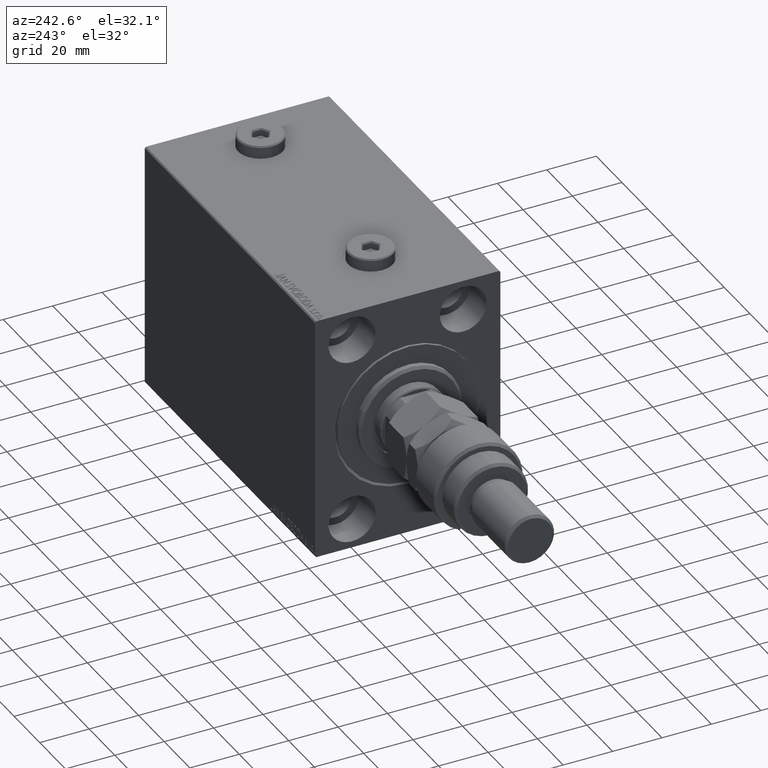
[diagram: clean part render]
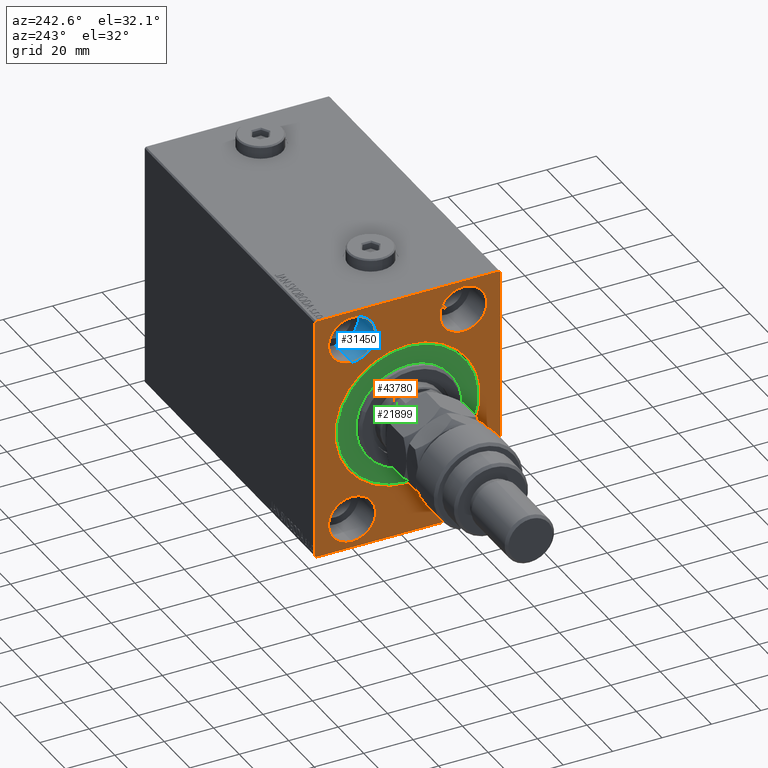
[diagram: same view with three faces highlighted in distinct colors, each labeled with its STEP entity id]
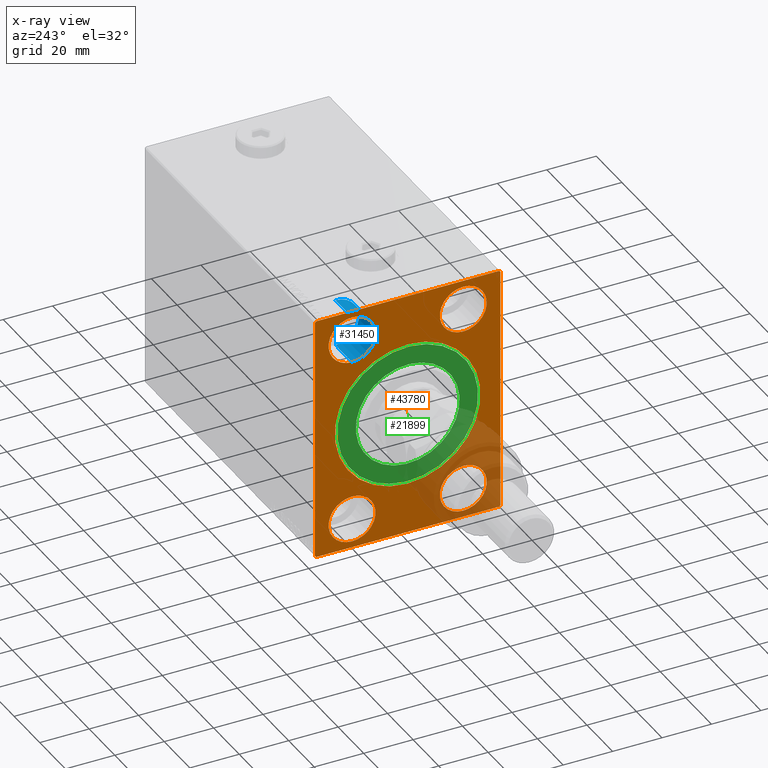
[diagram: x-ray of the same camera — body ghosted, the three highlighted faces saturated]
A machine part, auxiliary view with three faces highlighted in distinct colors.
The next image is the same camera in x-ray (body ghosted, the three faces saturated) — at least one of them is partly hidden behind the body in this view.
Their STEP definitions:

[orange] entity #43780 — the highlighted planar face has unit normal (1, 0, 0).
#85 = CARTESIAN_POINT ( 'NONE',  ( 0.000000000000000000, 0.000000000000000000, 29.50000000000002842 ) ) ;
#291 = CARTESIAN_POINT ( 'NONE',  ( 0.000000000000000000, 22.50000000000000355, 37.99999999999999289 ) ) ;
#345 = DIRECTION ( 'NONE',  ( 0.000000000000000000, -1.000000000000000000, -1.850371707708594316E-16 ) ) ;
#507 = CARTESIAN_POINT ( 'NONE',  ( 0.000000000000000000, -22.50000000000000711, -37.99999999999999289 ) ) ;
#653 = CARTESIAN_POINT ( 'NONE',  ( 0.000000000000000000, 36.99999999999997868, -50.00000000000000000 ) ) ;
#1312 = ORIENTED_EDGE ( 'NONE', *, *, #34344, .F. ) ;
#1766 = CARTESIAN_POINT ( 'NONE',  ( 0.000000000000000000, -22.49999999999999645, 37.99999999999999289 ) ) ;
#2259 = ORIENTED_EDGE ( 'NONE', *, *, #18943, .F. ) ;
#2311 = ORIENTED_EDGE ( 'NONE', *, *, #21625, .F. ) ;
#3371 = DIRECTION ( 'NONE',  ( 0.000000000000000000, 0.000000000000000000, 1.000000000000000000 ) ) ;
#3517 = EDGE_LOOP ( 'NONE', ( #2311, #9301, #17945, #40535, #35314, #23698, #42245, #33719 ) ) ;
#3784 = VECTOR ( 'NONE', #25185, 1000.000000000000114 ) ;
#4656 = ORIENTED_EDGE ( 'NONE', *, *, #21406, .F. ) ;
#4757 = CARTESIAN_POINT ( 'NONE',  ( 0.000000000000000000, -37.00000000000003553, -50.00000000000000711 ) ) ;
#5307 = VECTOR ( 'NONE', #8539, 1000.000000000000000 ) ;
#5553 = VERTEX_POINT ( 'NONE', #45293 ) ;
#5954 = FACE_OUTER_BOUND ( 'NONE', #3517, .T. ) ;
#6118 = LINE ( 'NONE', #20987, #40617 ) ;
#6296 = CARTESIAN_POINT ( 'NONE',  ( 0.000000000000000000, -22.50000000000000711, -37.99999999999999289 ) ) ;
#7179 = VERTEX_POINT ( 'NONE', #31281 ) ;
#7282 = CARTESIAN_POINT ( 'NONE',  ( 0.000000000000000000, 0.000000000000000000, 0.000000000000000000 ) ) ;
#7519 = VERTEX_POINT ( 'NONE', #32174 ) ;
#7895 = EDGE_LOOP ( 'NONE', ( #18840, #34393 ) ) ;
#7926 = EDGE_CURVE ( 'NONE', #35188, #34991, #16171, .T. ) ;
#7934 = LINE ( 'NONE', #4757, #25852 ) ;
#8331 = EDGE_CURVE ( 'NONE', #42750, #48070, #45142, .T. ) ;
#8539 = DIRECTION ( 'NONE',  ( 0.000000000000000000, 1.000000000000000000, 9.251858538542970348E-17 ) ) ;
#8741 = VECTOR ( 'NONE', #32708, 1000.000000000000000 ) ;
#8921 = EDGE_CURVE ( 'NONE', #7179, #13741, #34828, .T. ) ;
#9199 = VERTEX_POINT ( 'NONE', #32266 ) ;
#9301 = ORIENTED_EDGE ( 'NONE', *, *, #34521, .T. ) ;
#9378 = DIRECTION ( 'NONE',  ( 1.000000000000000000, 0.000000000000000000, 0.000000000000000000 ) ) ;
#9727 = CARTESIAN_POINT ( 'NONE',  ( 0.000000000000000000, -22.49999999999999645, 28.49999999999998934 ) ) ;
#10321 = AXIS2_PLACEMENT_3D ( 'NONE', #23719, #33963, #19129 ) ;
#10535 = EDGE_CURVE ( 'NONE', #10588, #22934, #22526, .T. ) ;
#10588 = VERTEX_POINT ( 'NONE', #31910 ) ;
#11943 = AXIS2_PLACEMENT_3D ( 'NONE', #44504, #30365, #3371 ) ;
#13271 = EDGE_CURVE ( 'NONE', #38362, #7519, #39712, .T. ) ;
#13465 = DIRECTION ( 'NONE',  ( 0.000000000000000000, -1.387778780781445676E-16, 1.000000000000000000 ) ) ;
#13599 = VERTEX_POINT ( 'NONE', #39874 ) ;
#13741 = VERTEX_POINT ( 'NONE', #653 ) ;
#13883 = VERTEX_POINT ( 'NONE', #28851 ) ;
#13972 = ORIENTED_EDGE ( 'NONE', *, *, #36246, .F. ) ;
#14689 = VECTOR ( 'NONE', #345, 1000.000000000000000 ) ;
#14905 = ORIENTED_EDGE ( 'NONE', *, *, #13271, .F. ) ;
#16171 = CIRCLE ( 'NONE', #43355, 29.50000000000002842 ) ;
#16633 = DIRECTION ( 'NONE',  ( -1.000000000000000000, 0.000000000000000000, 0.000000000000000000 ) ) ;
#17401 = CIRCLE ( 'NONE', #11943, 9.500000000000001776 ) ;
#17447 = EDGE_CURVE ( 'NONE', #34991, #35188, #39023, .T. ) ;
#17466 = DIRECTION ( 'NONE',  ( 0.000000000000000000, 0.000000000000000000, 1.000000000000000000 ) ) ;
#17752 = DIRECTION ( 'NONE',  ( 0.000000000000000000, 0.000000000000000000, 1.000000000000000000 ) ) ;
#17945 = ORIENTED_EDGE ( 'NONE', *, *, #8331, .F. ) ;
#18177 = EDGE_CURVE ( 'NONE', #5553, #13883, #6118, .T. ) ;
#18564 = EDGE_CURVE ( 'NONE', #7179, #30336, #7934, .T. ) ;
#18840 = ORIENTED_EDGE ( 'NONE', *, *, #17447, .T. ) ;
#18943 = EDGE_CURVE ( 'NONE', #22934, #10588, #38322, .T. ) ;
#19047 = DIRECTION ( 'NONE',  ( -1.000000000000000000, 0.000000000000000000, 0.000000000000000000 ) ) ;
#19129 = DIRECTION ( 'NONE',  ( 0.000000000000000000, 0.000000000000000000, 1.000000000000000000 ) ) ;
#19153 = ORIENTED_EDGE ( 'NONE', *, *, #40517, .F. ) ;
#19777 = CARTESIAN_POINT ( 'NONE',  ( 0.000000000000000000, -22.49999999999999645, 37.99999999999999289 ) ) ;
#20095 = AXIS2_PLACEMENT_3D ( 'NONE', #35713, #40088, #17466 ) ;
#20886 = DIRECTION ( 'NONE',  ( 1.000000000000000000, 0.000000000000000000, 0.000000000000000000 ) ) ;
#20987 = CARTESIAN_POINT ( 'NONE',  ( 0.000000000000000000, 37.50000000000000711, -50.00000000000000000 ) ) ;
#21020 = EDGE_LOOP ( 'NONE', ( #13972, #1312 ) ) ;
#21163 = DIRECTION ( 'NONE',  ( -1.000000000000000000, 0.000000000000000000, 0.000000000000000000 ) ) ;
#21199 = VECTOR ( 'NONE', #44385, 1000.000000000000000 ) ;
#21406 = EDGE_CURVE ( 'NONE', #13599, #9199, #31300, .T. ) ;
#21625 = EDGE_CURVE ( 'NONE', #33919, #30336, #44623, .T. ) ;
#21703 = EDGE_CURVE ( 'NONE', #42750, #13883, #33175, .T. ) ;
#21829 = CARTESIAN_POINT ( 'NONE',  ( 0.000000000000000000, 36.99999999999996447, 50.00000000000000711 ) ) ;
#22138 = DIRECTION ( 'NONE',  ( 0.000000000000000000, 0.000000000000000000, -1.000000000000000000 ) ) ;
#22202 = DIRECTION ( 'NONE',  ( 0.000000000000000000, 0.000000000000000000, 1.000000000000000000 ) ) ;
#22526 = CIRCLE ( 'NONE', #35722, 9.500000000000001776 ) ;
#22550 = DIRECTION ( 'NONE',  ( -0.000000000000000000, -0.7071067811865474617, 0.7071067811865474617 ) ) ;
#22703 = EDGE_LOOP ( 'NONE', ( #32225, #2259 ) ) ;
#22934 = VERTEX_POINT ( 'NONE', #9727 ) ;
#23141 = VECTOR ( 'NONE', #27441, 1000.000000000000114 ) ;
#23698 = ORIENTED_EDGE ( 'NONE', *, *, #37603, .T. ) ;
#23719 = CARTESIAN_POINT ( 'NONE',  ( 0.000000000000000000, 22.49999999999999645, -37.99999999999999289 ) ) ;
#23764 = EDGE_CURVE ( 'NONE', #9199, #13599, #17401, .T. ) ;
#24253 = AXIS2_PLACEMENT_3D ( 'NONE', #39386, #20886, #43267 ) ;
#24352 = CARTESIAN_POINT ( 'NONE',  ( 0.000000000000000000, -37.50000000000000711, -50.00000000000000711 ) ) ;
#24789 = VERTEX_POINT ( 'NONE', #46921 ) ;
#24809 = AXIS2_PLACEMENT_3D ( 'NONE', #28355, #9378, #47115 ) ;
#25185 = DIRECTION ( 'NONE',  ( 0.000000000000000000, -0.7071067811865474617, -0.7071067811865474617 ) ) ;
#25852 = VECTOR ( 'NONE', #22550, 1000.000000000000114 ) ;
#26634 = CARTESIAN_POINT ( 'NONE',  ( 0.000000000000000000, 37.49999999999999289, 50.00000000000000711 ) ) ;
#26640 = EDGE_LOOP ( 'NONE', ( #14905, #19153 ) ) ;
#26960 = LINE ( 'NONE', #38629, #23141 ) ;
#27276 = DIRECTION ( 'NONE',  ( 0.000000000000000000, 0.000000000000000000, 1.000000000000000000 ) ) ;
#27441 = DIRECTION ( 'NONE',  ( -0.000000000000000000, 0.7071067811865474617, 0.7071067811865474617 ) ) ;
#27875 = FACE_BOUND ( 'NONE', #21020, .T. ) ;
#28355 = CARTESIAN_POINT ( 'NONE',  ( 0.000000000000000000, 0.000000000000000000, 0.000000000000000000 ) ) ;
#28851 = CARTESIAN_POINT ( 'NONE',  ( 0.000000000000000000, 37.49999999999999289, 49.49999999999997158 ) ) ;
#29286 = CARTESIAN_POINT ( 'NONE',  ( 0.000000000000000000, -37.50000000000000711, 49.99999999999999289 ) ) ;
#29332 = CIRCLE ( 'NONE', #43298, 9.500000000000001776 ) ;
#29527 = CARTESIAN_POINT ( 'NONE',  ( 0.000000000000000000, 36.99999999999996447, 50.00000000000000711 ) ) ;
#29669 = DIRECTION ( 'NONE',  ( 1.000000000000000000, 0.000000000000000000, 0.000000000000000000 ) ) ;
#30336 = VERTEX_POINT ( 'NONE', #42676 ) ;
#30365 = DIRECTION ( 'NONE',  ( -1.000000000000000000, 0.000000000000000000, 0.000000000000000000 ) ) ;
#30438 = DIRECTION ( 'NONE',  ( -1.000000000000000000, 0.000000000000000000, 0.000000000000000000 ) ) ;
#31281 = CARTESIAN_POINT ( 'NONE',  ( 0.000000000000000000, -37.00000000000003553, -50.00000000000000711 ) ) ;
#31300 = CIRCLE ( 'NONE', #10321, 9.500000000000001776 ) ;
#31460 = DIRECTION ( 'NONE',  ( 0.000000000000000000, 0.000000000000000000, 1.000000000000000000 ) ) ;
#31866 = VERTEX_POINT ( 'NONE', #40038 ) ;
#31910 = CARTESIAN_POINT ( 'NONE',  ( 0.000000000000000000, -22.49999999999999645, 47.49999999999999289 ) ) ;
#31984 = AXIS2_PLACEMENT_3D ( 'NONE', #1766, #16633, #31460 ) ;
#32174 = CARTESIAN_POINT ( 'NONE',  ( 0.000000000000000000, 22.50000000000000355, 28.49999999999998934 ) ) ;
#32225 = ORIENTED_EDGE ( 'NONE', *, *, #10535, .F. ) ;
#32266 = CARTESIAN_POINT ( 'NONE',  ( 0.000000000000000000, 22.49999999999999645, -28.49999999999998934 ) ) ;
#32305 = CARTESIAN_POINT ( 'NONE',  ( 0.000000000000000000, 22.50000000000000355, 47.49999999999999289 ) ) ;
#32708 = DIRECTION ( 'NONE',  ( 0.000000000000000000, 0.000000000000000000, -1.000000000000000000 ) ) ;
#33175 = LINE ( 'NONE', #29527, #21199 ) ;
#33389 = CARTESIAN_POINT ( 'NONE',  ( 0.000000000000000000, -36.99999999999997868, 49.99999999999999289 ) ) ;
#33719 = ORIENTED_EDGE ( 'NONE', *, *, #18564, .T. ) ;
#33919 = VERTEX_POINT ( 'NONE', #43723 ) ;
#33963 = DIRECTION ( 'NONE',  ( -1.000000000000000000, 0.000000000000000000, 0.000000000000000000 ) ) ;
#34344 = EDGE_CURVE ( 'NONE', #31866, #24789, #29332, .T. ) ;
#34377 = DIRECTION ( 'NONE',  ( 0.000000000000000000, 0.000000000000000000, 1.000000000000000000 ) ) ;
#34393 = ORIENTED_EDGE ( 'NONE', *, *, #7926, .T. ) ;
#34521 = EDGE_CURVE ( 'NONE', #33919, #48070, #26960, .T. ) ;
#34612 = DIRECTION ( 'NONE',  ( -1.000000000000000000, 0.000000000000000000, 0.000000000000000000 ) ) ;
#34828 = LINE ( 'NONE', #24352, #5307 ) ;
#34991 = VERTEX_POINT ( 'NONE', #85 ) ;
#35188 = VERTEX_POINT ( 'NONE', #37684 ) ;
#35189 = FACE_BOUND ( 'NONE', #45070, .T. ) ;
#35314 = ORIENTED_EDGE ( 'NONE', *, *, #18177, .F. ) ;
#35713 = CARTESIAN_POINT ( 'NONE',  ( 0.000000000000000000, 22.50000000000000355, 37.99999999999999289 ) ) ;
#35722 = AXIS2_PLACEMENT_3D ( 'NONE', #19777, #34612, #34377 ) ;
#36246 = EDGE_CURVE ( 'NONE', #24789, #31866, #45755, .T. ) ;
#37155 = AXIS2_PLACEMENT_3D ( 'NONE', #507, #30438, #27276 ) ;
#37603 = EDGE_CURVE ( 'NONE', #5553, #13741, #44161, .T. ) ;
#37684 = CARTESIAN_POINT ( 'NONE',  ( 0.000000000000000000, 3.612708057484695548E-15, -29.50000000000002842 ) ) ;
#38322 = CIRCLE ( 'NONE', #31984, 9.500000000000001776 ) ;
#38362 = VERTEX_POINT ( 'NONE', #32305 ) ;
#38629 = CARTESIAN_POINT ( 'NONE',  ( 0.000000000000000000, -37.50000000000000711, 49.49999999999996447 ) ) ;
#38924 = AXIS2_PLACEMENT_3D ( 'NONE', #291, #19047, #22202 ) ;
#39023 = CIRCLE ( 'NONE', #24253, 29.50000000000002842 ) ;
#39386 = CARTESIAN_POINT ( 'NONE',  ( 0.000000000000000000, 0.000000000000000000, 0.000000000000000000 ) ) ;
#39712 = CIRCLE ( 'NONE', #38924, 9.500000000000001776 ) ;
#39874 = CARTESIAN_POINT ( 'NONE',  ( 0.000000000000000000, 22.49999999999999645, -47.49999999999999289 ) ) ;
#40038 = CARTESIAN_POINT ( 'NONE',  ( 0.000000000000000000, -22.50000000000000711, -47.49999999999999289 ) ) ;
#40088 = DIRECTION ( 'NONE',  ( -1.000000000000000000, 0.000000000000000000, 0.000000000000000000 ) ) ;
#40517 = EDGE_CURVE ( 'NONE', #7519, #38362, #41844, .T. ) ;
#40535 = ORIENTED_EDGE ( 'NONE', *, *, #21703, .T. ) ;
#40617 = VECTOR ( 'NONE', #13465, 1000.000000000000000 ) ;
#41844 = CIRCLE ( 'NONE', #20095, 9.500000000000001776 ) ;
#42245 = ORIENTED_EDGE ( 'NONE', *, *, #8921, .F. ) ;
#42676 = CARTESIAN_POINT ( 'NONE',  ( 0.000000000000000000, -37.50000000000000711, -49.50000000000003553 ) ) ;
#42727 = PLANE ( 'NONE',  #24809 ) ;
#42750 = VERTEX_POINT ( 'NONE', #21829 ) ;
#43267 = DIRECTION ( 'NONE',  ( 0.000000000000000000, 0.000000000000000000, -1.000000000000000000 ) ) ;
#43298 = AXIS2_PLACEMENT_3D ( 'NONE', #6296, #21163, #17752 ) ;
#43355 = AXIS2_PLACEMENT_3D ( 'NONE', #7282, #29669, #22138 ) ;
#43449 = FACE_BOUND ( 'NONE', #7895, .T. ) ;
#43723 = CARTESIAN_POINT ( 'NONE',  ( 0.000000000000000000, -37.50000000000000711, 49.49999999999996447 ) ) ;
#43780 = ADVANCED_FACE ( 'NONE', ( #43449, #35189, #46167, #46398, #27875, #5954 ), #42727, .F. ) ;
#44161 = LINE ( 'NONE', #48071, #3784 ) ;
#44385 = DIRECTION ( 'NONE',  ( -0.000000000000000000, 0.7071067811865426878, -0.7071067811865524577 ) ) ;
#44504 = CARTESIAN_POINT ( 'NONE',  ( 0.000000000000000000, 22.49999999999999645, -37.99999999999999289 ) ) ;
#44623 = LINE ( 'NONE', #29286, #8741 ) ;
#45070 = EDGE_LOOP ( 'NONE', ( #47606, #4656 ) ) ;
#45142 = LINE ( 'NONE', #26634, #14689 ) ;
#45293 = CARTESIAN_POINT ( 'NONE',  ( 0.000000000000000000, 37.50000000000000711, -49.49999999999997158 ) ) ;
#45755 = CIRCLE ( 'NONE', #37155, 9.500000000000001776 ) ;
#46167 = FACE_BOUND ( 'NONE', #22703, .T. ) ;
#46398 = FACE_BOUND ( 'NONE', #26640, .T. ) ;
#46921 = CARTESIAN_POINT ( 'NONE',  ( 0.000000000000000000, -22.50000000000000711, -28.49999999999998934 ) ) ;
#47115 = DIRECTION ( 'NONE',  ( 0.000000000000000000, 0.000000000000000000, -1.000000000000000000 ) ) ;
#47606 = ORIENTED_EDGE ( 'NONE', *, *, #23764, .F. ) ;
#48070 = VERTEX_POINT ( 'NONE', #33389 ) ;
#48071 = CARTESIAN_POINT ( 'NONE',  ( 0.000000000000000000, 37.50000000000000711, -49.49999999999997158 ) ) ;

[blue] entity #31450 — the highlighted cylindrical surface (edge-blend (fillet) strip) has radius 9.5 mm, axis along (-1, -0, -0).
#1458 = DIRECTION ( 'NONE',  ( 0.000000000000000000, 0.000000000000000000, 1.000000000000000000 ) ) ;
#3294 = EDGE_CURVE ( 'NONE', #48098, #29805, #8367, .T. ) ;
#4007 = EDGE_CURVE ( 'NONE', #29805, #38362, #35877, .T. ) ;
#4848 = DIRECTION ( 'NONE',  ( 0.000000000000000000, 0.000000000000000000, 1.000000000000000000 ) ) ;
#5082 = CARTESIAN_POINT ( 'NONE',  ( 13.00000000000000000, 22.50000000000000355, 37.99999999999999289 ) ) ;
#5242 = AXIS2_PLACEMENT_3D ( 'NONE', #5082, #12418, #4848 ) ;
#6656 = DIRECTION ( 'NONE',  ( -1.000000000000000000, -0.000000000000000000, -0.000000000000000000 ) ) ;
#7519 = VERTEX_POINT ( 'NONE', #32174 ) ;
#7976 = EDGE_LOOP ( 'NONE', ( #12766, #15751, #39291, #26616 ) ) ;
#8367 = CIRCLE ( 'NONE', #5242, 9.500000000000001776 ) ;
#12418 = DIRECTION ( 'NONE',  ( -1.000000000000000000, 0.000000000000000000, 0.000000000000000000 ) ) ;
#12685 = CARTESIAN_POINT ( 'NONE',  ( 13.00000000000000000, 22.50000000000000355, 37.99999999999999289 ) ) ;
#12766 = ORIENTED_EDGE ( 'NONE', *, *, #3294, .F. ) ;
#15751 = ORIENTED_EDGE ( 'NONE', *, *, #17272, .T. ) ;
#15812 = CARTESIAN_POINT ( 'NONE',  ( 13.00000000000000000, 22.50000000000000355, 28.49999999999998934 ) ) ;
#16086 = FACE_OUTER_BOUND ( 'NONE', #7976, .T. ) ;
#17272 = EDGE_CURVE ( 'NONE', #48098, #7519, #44774, .T. ) ;
#17466 = DIRECTION ( 'NONE',  ( 0.000000000000000000, 0.000000000000000000, 1.000000000000000000 ) ) ;
#20095 = AXIS2_PLACEMENT_3D ( 'NONE', #35713, #40088, #17466 ) ;
#26616 = ORIENTED_EDGE ( 'NONE', *, *, #4007, .F. ) ;
#26753 = CARTESIAN_POINT ( 'NONE',  ( 13.00000000000000000, 22.50000000000000355, 47.49999999999999289 ) ) ;
#27028 = CYLINDRICAL_SURFACE ( 'NONE', #27702, 9.500000000000001776 ) ;
#27702 = AXIS2_PLACEMENT_3D ( 'NONE', #12685, #34105, #1458 ) ;
#29805 = VERTEX_POINT ( 'NONE', #26753 ) ;
#31450 = ADVANCED_FACE ( 'NONE', ( #16086 ), #27028, .F. ) ;
#32174 = CARTESIAN_POINT ( 'NONE',  ( 0.000000000000000000, 22.50000000000000355, 28.49999999999998934 ) ) ;
#32305 = CARTESIAN_POINT ( 'NONE',  ( 0.000000000000000000, 22.50000000000000355, 47.49999999999999289 ) ) ;
#32520 = VECTOR ( 'NONE', #6656, 1000.000000000000000 ) ;
#34105 = DIRECTION ( 'NONE',  ( -1.000000000000000000, -0.000000000000000000, -0.000000000000000000 ) ) ;
#35713 = CARTESIAN_POINT ( 'NONE',  ( 0.000000000000000000, 22.50000000000000355, 37.99999999999999289 ) ) ;
#35877 = LINE ( 'NONE', #43659, #32520 ) ;
#38181 = DIRECTION ( 'NONE',  ( -1.000000000000000000, -0.000000000000000000, -0.000000000000000000 ) ) ;
#38362 = VERTEX_POINT ( 'NONE', #32305 ) ;
#39291 = ORIENTED_EDGE ( 'NONE', *, *, #40517, .T. ) ;
#40088 = DIRECTION ( 'NONE',  ( -1.000000000000000000, 0.000000000000000000, 0.000000000000000000 ) ) ;
#40517 = EDGE_CURVE ( 'NONE', #7519, #38362, #41844, .T. ) ;
#41844 = CIRCLE ( 'NONE', #20095, 9.500000000000001776 ) ;
#43381 = CARTESIAN_POINT ( 'NONE',  ( 13.00000000000000000, 22.50000000000000355, 28.49999999999998934 ) ) ;
#43659 = CARTESIAN_POINT ( 'NONE',  ( 13.00000000000000000, 22.50000000000000355, 47.49999999999999289 ) ) ;
#44482 = VECTOR ( 'NONE', #38181, 1000.000000000000000 ) ;
#44774 = LINE ( 'NONE', #15812, #44482 ) ;
#48098 = VERTEX_POINT ( 'NONE', #43381 ) ;

[green] entity #21899 — the highlighted planar face has unit normal (1, 0, -0).
#2419 = EDGE_LOOP ( 'NONE', ( #17384, #20989 ) ) ;
#8141 = VERTEX_POINT ( 'NONE', #23799 ) ;
#8224 = DIRECTION ( 'NONE',  ( 0.000000000000000000, 0.000000000000000000, -1.000000000000000000 ) ) ;
#10198 = DIRECTION ( 'NONE',  ( 0.000000000000000000, 0.000000000000000000, 1.000000000000000000 ) ) ;
#10281 = EDGE_CURVE ( 'NONE', #24659, #40734, #31786, .T. ) ;
#10749 = CIRCLE ( 'NONE', #29399, 21.00000000000000000 ) ;
#11311 = CARTESIAN_POINT ( 'NONE',  ( 0.000000000000000000, 0.000000000000000000, 21.00000000000000000 ) ) ;
#11930 = AXIS2_PLACEMENT_3D ( 'NONE', #17510, #39656, #10198 ) ;
#12723 = FACE_BOUND ( 'NONE', #28483, .T. ) ;
#13451 = PLANE ( 'NONE',  #26611 ) ;
#15260 = ORIENTED_EDGE ( 'NONE', *, *, #10281, .F. ) ;
#16668 = DIRECTION ( 'NONE',  ( 1.000000000000000000, -0.000000000000000000, 0.000000000000000000 ) ) ;
#17384 = ORIENTED_EDGE ( 'NONE', *, *, #18426, .F. ) ;
#17510 = CARTESIAN_POINT ( 'NONE',  ( 0.000000000000000000, 0.000000000000000000, 0.000000000000000000 ) ) ;
#18426 = EDGE_CURVE ( 'NONE', #8141, #34236, #38287, .T. ) ;
#19912 = DIRECTION ( 'NONE',  ( 1.000000000000000000, -0.000000000000000000, 0.000000000000000000 ) ) ;
#20497 = DIRECTION ( 'NONE',  ( -1.000000000000000000, 0.000000000000000000, 0.000000000000000000 ) ) ;
#20989 = ORIENTED_EDGE ( 'NONE', *, *, #23589, .F. ) ;
#21589 = CARTESIAN_POINT ( 'NONE',  ( 0.000000000000000000, 0.000000000000000000, 0.000000000000000000 ) ) ;
#21899 = ADVANCED_FACE ( 'NONE', ( #12723, #27552 ), #13451, .F. ) ;
#22358 = CARTESIAN_POINT ( 'NONE',  ( 0.000000000000000000, 2.571758278209441661E-15, -21.00000000000000000 ) ) ;
#23589 = EDGE_CURVE ( 'NONE', #34236, #8141, #37555, .T. ) ;
#23799 = CARTESIAN_POINT ( 'NONE',  ( 0.000000000000000000, 0.000000000000000000, -28.50000000000000000 ) ) ;
#23953 = CARTESIAN_POINT ( 'NONE',  ( 0.000000000000000000, 0.000000000000000000, 0.000000000000000000 ) ) ;
#24659 = VERTEX_POINT ( 'NONE', #22358 ) ;
#26611 = AXIS2_PLACEMENT_3D ( 'NONE', #42397, #20497, #35334 ) ;
#26754 = ORIENTED_EDGE ( 'NONE', *, *, #40176, .F. ) ;
#27255 = CARTESIAN_POINT ( 'NONE',  ( 0.000000000000000000, 3.490243377569956456E-15, 28.50000000000000000 ) ) ;
#27552 = FACE_OUTER_BOUND ( 'NONE', #2419, .T. ) ;
#28483 = EDGE_LOOP ( 'NONE', ( #26754, #15260 ) ) ;
#28697 = AXIS2_PLACEMENT_3D ( 'NONE', #23953, #16668, #39055 ) ;
#28887 = DIRECTION ( 'NONE',  ( 0.000000000000000000, 0.000000000000000000, 1.000000000000000000 ) ) ;
#29363 = DIRECTION ( 'NONE',  ( -1.000000000000000000, 0.000000000000000000, 0.000000000000000000 ) ) ;
#29399 = AXIS2_PLACEMENT_3D ( 'NONE', #30375, #19912, #8224 ) ;
#30375 = CARTESIAN_POINT ( 'NONE',  ( 0.000000000000000000, 0.000000000000000000, 0.000000000000000000 ) ) ;
#31786 = CIRCLE ( 'NONE', #28697, 21.00000000000000000 ) ;
#34236 = VERTEX_POINT ( 'NONE', #27255 ) ;
#35334 = DIRECTION ( 'NONE',  ( 0.000000000000000000, 0.000000000000000000, 1.000000000000000000 ) ) ;
#37555 = CIRCLE ( 'NONE', #11930, 28.50000000000000000 ) ;
#38287 = CIRCLE ( 'NONE', #39858, 28.50000000000000000 ) ;
#39055 = DIRECTION ( 'NONE',  ( 0.000000000000000000, 0.000000000000000000, -1.000000000000000000 ) ) ;
#39656 = DIRECTION ( 'NONE',  ( -1.000000000000000000, 0.000000000000000000, 0.000000000000000000 ) ) ;
#39858 = AXIS2_PLACEMENT_3D ( 'NONE', #21589, #29363, #28887 ) ;
#40176 = EDGE_CURVE ( 'NONE', #40734, #24659, #10749, .T. ) ;
#40734 = VERTEX_POINT ( 'NONE', #11311 ) ;
#42397 = CARTESIAN_POINT ( 'NONE',  ( 0.000000000000000000, 0.000000000000000000, 0.000000000000000000 ) ) ;